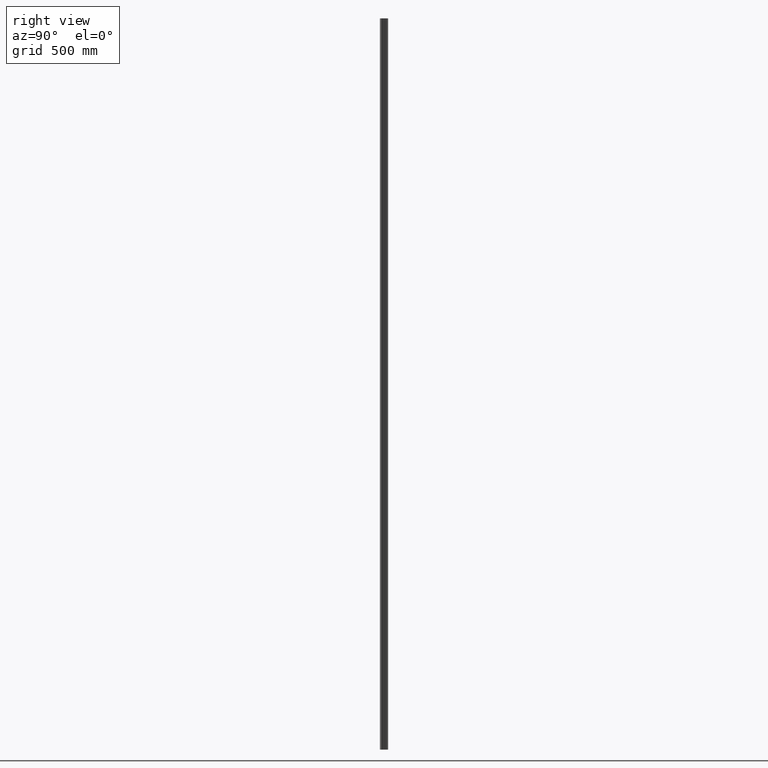
[diagram: clean part render]
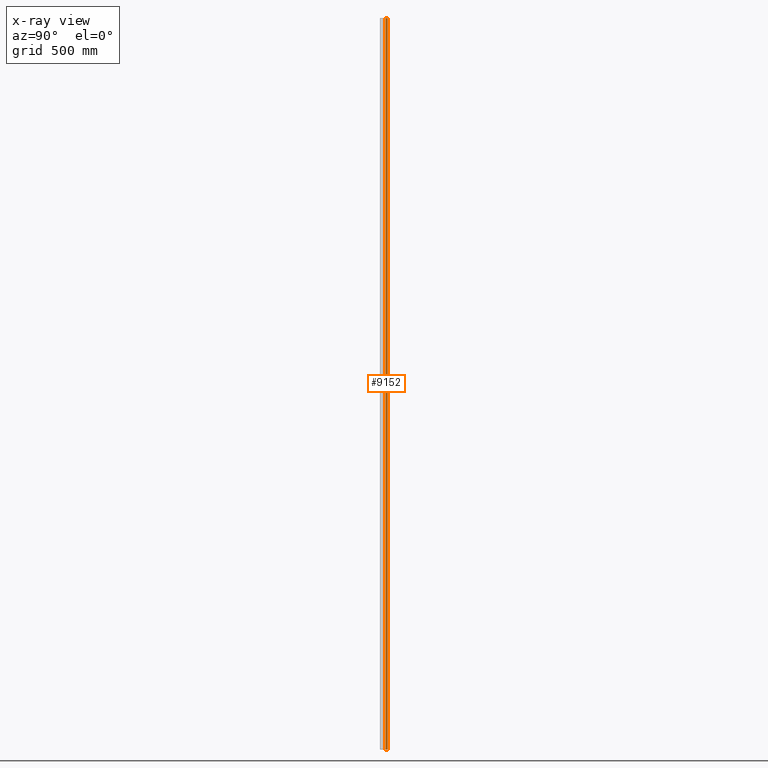
[diagram: x-ray — body ghosted, one internal face saturated and labeled with its STEP entity id]
A machine part, right view, then the same camera in x-ray: the body is ghosted and one INTERNAL B-rep face — a face not visible from any outside direction — is saturated and labeled: STEP entity #9152.
In plain terms, the highlighted planar face has unit normal (-1, 0, 0).
Its self-contained STEP definition (entity closure, byte-faithful):
#823 = CARTESIAN_POINT ( 'NONE',  ( -8.500000000000000000, -10.09999999999999964, 1500.000000000000000 ) ) ;
#1487 = DIRECTION ( 'NONE',  ( -0.000000000000000000, -0.000000000000000000, -1.000000000000000000 ) ) ;
#1842 = VERTEX_POINT ( 'NONE', #3676 ) ;
#1953 = CARTESIAN_POINT ( 'NONE',  ( -8.500000000000000000, -10.09999999999999964, -1500.000000000000000 ) ) ;
#2395 = DIRECTION ( 'NONE',  ( 0.000000000000000000, 0.000000000000000000, 1.000000000000000000 ) ) ;
#2927 = VERTEX_POINT ( 'NONE', #6156 ) ;
#3516 = DIRECTION ( 'NONE',  ( 0.000000000000000000, 1.000000000000000000, 0.000000000000000000 ) ) ;
#3657 = LINE ( 'NONE', #4452, #11783 ) ;
#3676 = CARTESIAN_POINT ( 'NONE',  ( -8.500000000000000000, -10.09999999999999964, -1500.000000000000000 ) ) ;
#4452 = CARTESIAN_POINT ( 'NONE',  ( -8.500000000000000000, -10.09999999999999964, 1500.000000000000000 ) ) ;
#5165 = VECTOR ( 'NONE', #3516, 1000.000000000000000 ) ;
#5756 = EDGE_CURVE ( 'NONE', #2927, #20067, #14629, .T. ) ;
#5761 = VECTOR ( 'NONE', #9403, 1000.000000000000000 ) ;
#6156 = CARTESIAN_POINT ( 'NONE',  ( -8.500000000000000000, -10.09999999999999964, 1500.000000000000000 ) ) ;
#7464 = DIRECTION ( 'NONE',  ( -0.000000000000000000, -0.000000000000000000, -1.000000000000000000 ) ) ;
#8377 = ORIENTED_EDGE ( 'NONE', *, *, #15965, .T. ) ;
#9152 = ADVANCED_FACE ( 'NONE', ( #12352 ), #13548, .F. ) ;
#9205 = ORIENTED_EDGE ( 'NONE', *, *, #15370, .T. ) ;
#9403 = DIRECTION ( 'NONE',  ( 0.000000000000000000, 1.000000000000000000, 0.000000000000000000 ) ) ;
#9862 = VERTEX_POINT ( 'NONE', #19279 ) ;
#11679 = EDGE_CURVE ( 'NONE', #20067, #9862, #17949, .T. ) ;
#11781 = ORIENTED_EDGE ( 'NONE', *, *, #11679, .F. ) ;
#11783 = VECTOR ( 'NONE', #7464, 1000.000000000000000 ) ;
#11832 = DIRECTION ( 'NONE',  ( -1.000000000000000000, 0.000000000000000000, 0.000000000000000000 ) ) ;
#12352 = FACE_OUTER_BOUND ( 'NONE', #16191, .T. ) ;
#13548 = PLANE ( 'NONE',  #17999 ) ;
#14629 = LINE ( 'NONE', #15639, #5761 ) ;
#15370 = EDGE_CURVE ( 'NONE', #1842, #9862, #16705, .T. ) ;
#15639 = CARTESIAN_POINT ( 'NONE',  ( -8.500000000000000000, -10.09999999999999964, 1500.000000000000000 ) ) ;
#15965 = EDGE_CURVE ( 'NONE', #2927, #1842, #3657, .T. ) ;
#16191 = EDGE_LOOP ( 'NONE', ( #9205, #11781, #17533, #8377 ) ) ;
#16705 = LINE ( 'NONE', #1953, #5165 ) ;
#16713 = VECTOR ( 'NONE', #1487, 1000.000000000000000 ) ;
#17533 = ORIENTED_EDGE ( 'NONE', *, *, #5756, .F. ) ;
#17949 = LINE ( 'NONE', #20293, #16713 ) ;
#17999 = AXIS2_PLACEMENT_3D ( 'NONE', #823, #11832, #2395 ) ;
#19279 = CARTESIAN_POINT ( 'NONE',  ( -8.500000000000000000, -3.000000000000000000, -1500.000000000000000 ) ) ;
#19673 = CARTESIAN_POINT ( 'NONE',  ( -8.500000000000000000, -3.000000000000000000, 1500.000000000000000 ) ) ;
#20067 = VERTEX_POINT ( 'NONE', #19673 ) ;
#20293 = CARTESIAN_POINT ( 'NONE',  ( -8.500000000000000000, -3.000000000000000000, 1500.000000000000000 ) ) ;